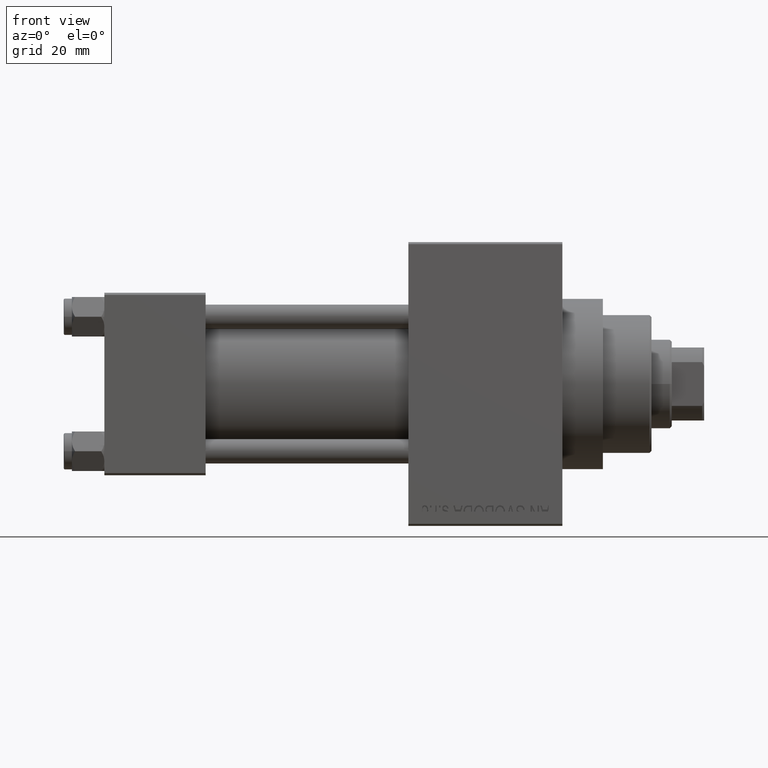
[diagram: clean part render]
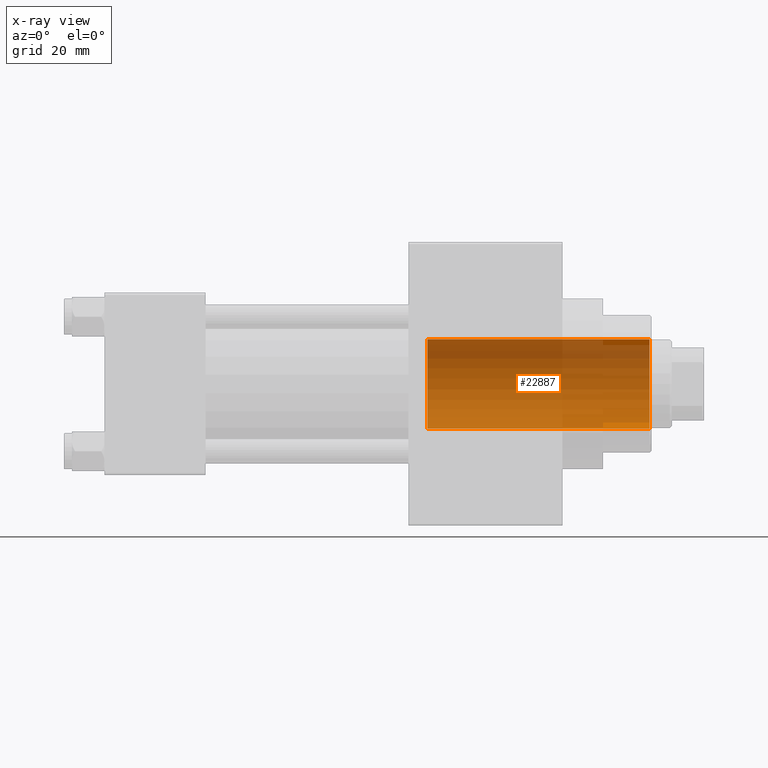
[diagram: x-ray — body ghosted, one internal face saturated and labeled with its STEP entity id]
A machine part, front view, then the same camera in x-ray: the body is ghosted and one INTERNAL B-rep face — a face not visible from any outside direction — is saturated and labeled: STEP entity #22887.
In plain terms, the highlighted cylindrical surface (partial cylindrical patch) has radius 11 mm, axis along (1, -0, -0).
Its self-contained STEP definition (entity closure, byte-faithful):
#1427 = EDGE_CURVE ( 'NONE', #48403, #6583, #32603, .T. ) ;
#1711 = CARTESIAN_POINT ( 'NONE',  ( 0.000000000000000000, 0.000000000000000000, 54.76000000000000512 ) ) ;
#2472 = CARTESIAN_POINT ( 'NONE',  ( -11.00000000000000000, 1.347111479062088405E-15, 0.000000000000000000 ) ) ;
#5725 = ORIENTED_EDGE ( 'NONE', *, *, #25998, .F. ) ;
#6583 = VERTEX_POINT ( 'NONE', #2472 ) ;
#7621 = DIRECTION ( 'NONE',  ( 1.000000000000000000, 0.000000000000000000, 0.000000000000000000 ) ) ;
#10073 = CARTESIAN_POINT ( 'NONE',  ( -11.00000000000000000, 1.347111479062088405E-15, -31.11269837220809364 ) ) ;
#11068 = CYLINDRICAL_SURFACE ( 'NONE', #45161, 11.00000000000000000 ) ;
#12185 = ORIENTED_EDGE ( 'NONE', *, *, #18103, .T. ) ;
#13186 = ORIENTED_EDGE ( 'NONE', *, *, #27417, .F. ) ;
#13830 = DIRECTION ( 'NONE',  ( -0.000000000000000000, -0.000000000000000000, -1.000000000000000000 ) ) ;
#13847 = CARTESIAN_POINT ( 'NONE',  ( -11.00000000000000000, 1.347111479062088405E-15, 54.76000000000000512 ) ) ;
#15277 = FACE_OUTER_BOUND ( 'NONE', #39679, .T. ) ;
#16780 = DIRECTION ( 'NONE',  ( -0.000000000000000000, -0.000000000000000000, -1.000000000000000000 ) ) ;
#17430 = DIRECTION ( 'NONE',  ( -0.000000000000000000, -0.000000000000000000, 1.000000000000000000 ) ) ;
#18103 = EDGE_CURVE ( 'NONE', #6583, #27907, #47826, .T. ) ;
#20724 = DIRECTION ( 'NONE',  ( 1.000000000000000000, 0.000000000000000000, 0.000000000000000000 ) ) ;
#21471 = DIRECTION ( 'NONE',  ( 1.000000000000000000, 0.000000000000000000, 0.000000000000000000 ) ) ;
#21633 = CARTESIAN_POINT ( 'NONE',  ( 11.00000000000000000, 0.000000000000000000, -31.11269837220809364 ) ) ;
#22887 = ADVANCED_FACE ( 'NONE', ( #15277 ), #11068, .F. ) ;
#23128 = AXIS2_PLACEMENT_3D ( 'NONE', #36268, #13830, #21471 ) ;
#24808 = AXIS2_PLACEMENT_3D ( 'NONE', #1711, #16780, #20724 ) ;
#25894 = CARTESIAN_POINT ( 'NONE',  ( 0.000000000000000000, 0.000000000000000000, -31.11269837220809364 ) ) ;
#25998 = EDGE_CURVE ( 'NONE', #48403, #38287, #40617, .T. ) ;
#27417 = EDGE_CURVE ( 'NONE', #38287, #27907, #37413, .T. ) ;
#27907 = VERTEX_POINT ( 'NONE', #13847 ) ;
#30622 = ORIENTED_EDGE ( 'NONE', *, *, #1427, .T. ) ;
#32603 = CIRCLE ( 'NONE', #23128, 11.00000000000000000 ) ;
#36268 = CARTESIAN_POINT ( 'NONE',  ( 0.000000000000000000, 0.000000000000000000, 0.000000000000000000 ) ) ;
#36793 = CARTESIAN_POINT ( 'NONE',  ( 11.00000000000000000, 0.000000000000000000, 0.000000000000000000 ) ) ;
#37413 = CIRCLE ( 'NONE', #24808, 11.00000000000000000 ) ;
#38073 = CARTESIAN_POINT ( 'NONE',  ( 11.00000000000000000, 0.000000000000000000, 54.76000000000000512 ) ) ;
#38287 = VERTEX_POINT ( 'NONE', #38073 ) ;
#39679 = EDGE_LOOP ( 'NONE', ( #30622, #12185, #13186, #5725 ) ) ;
#40617 = LINE ( 'NONE', #21633, #41327 ) ;
#40927 = DIRECTION ( 'NONE',  ( -0.000000000000000000, -0.000000000000000000, 1.000000000000000000 ) ) ;
#41327 = VECTOR ( 'NONE', #17430, 1000.000000000000000 ) ;
#44363 = DIRECTION ( 'NONE',  ( -0.000000000000000000, -0.000000000000000000, 1.000000000000000000 ) ) ;
#45161 = AXIS2_PLACEMENT_3D ( 'NONE', #25894, #40927, #7621 ) ;
#47826 = LINE ( 'NONE', #10073, #48148 ) ;
#48148 = VECTOR ( 'NONE', #44363, 1000.000000000000000 ) ;
#48403 = VERTEX_POINT ( 'NONE', #36793 ) ;